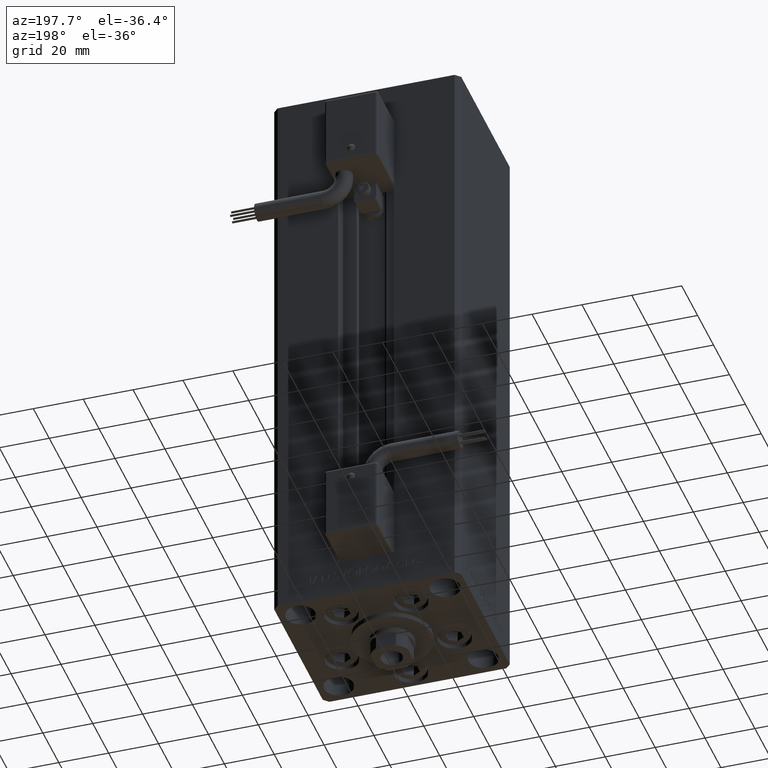
[diagram: clean part render]
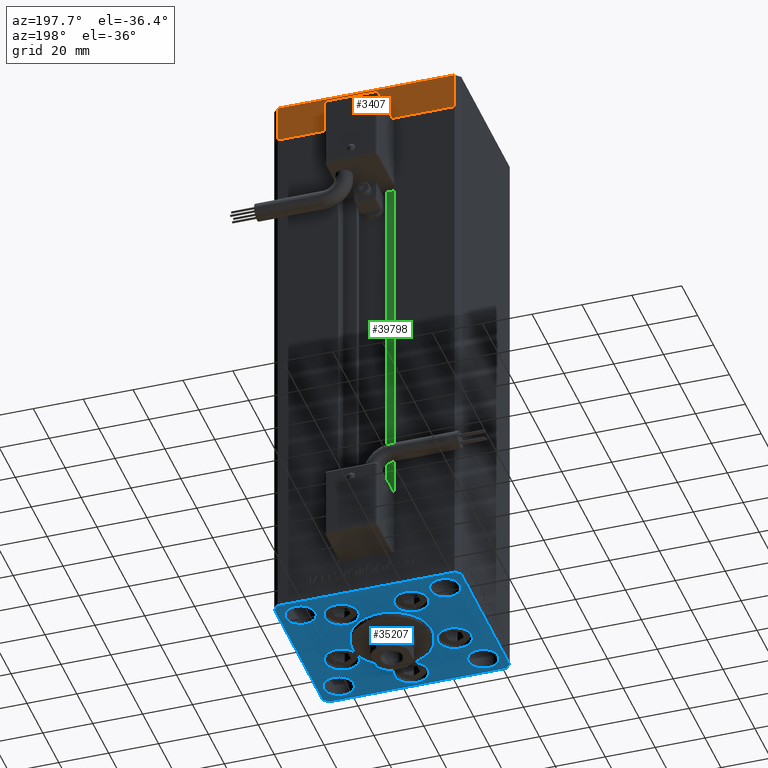
[diagram: same view with three faces highlighted in distinct colors, each labeled with its STEP entity id]
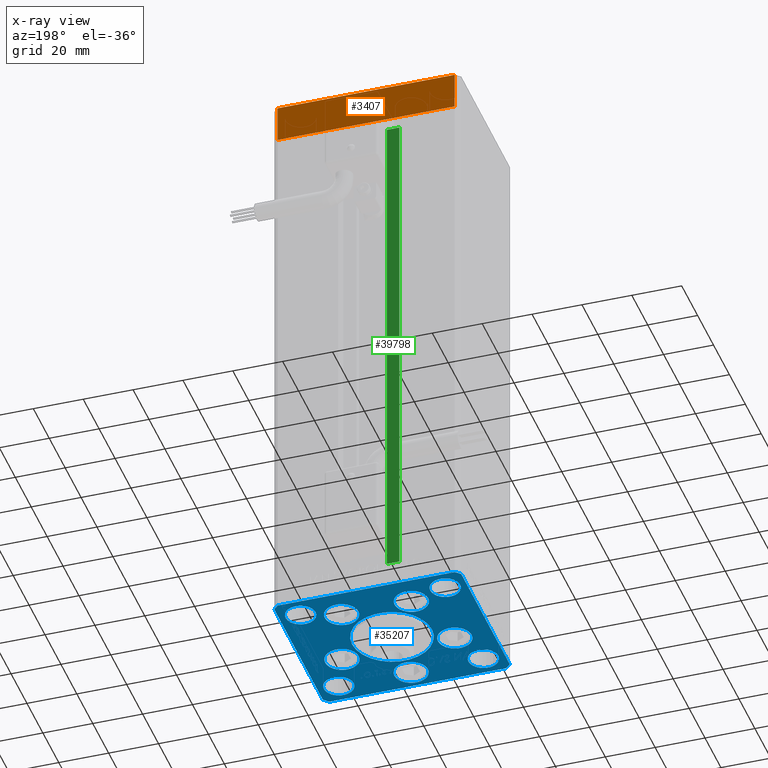
[diagram: x-ray of the same camera — body ghosted, the three highlighted faces saturated]
A machine part, auxiliary view with three faces highlighted in distinct colors.
The next image is the same camera in x-ray (body ghosted, the three faces saturated) — at least one of them is partly hidden behind the body in this view.
Their STEP definitions:

[orange] entity #3407 — the highlighted planar face has unit normal (-0, 1, 0).
#1915 = AXIS2_PLACEMENT_3D ( 'NONE', #33729, #6213, #38228 ) ;
#2566 = LINE ( 'NONE', #34583, #32223 ) ;
#3407 = ADVANCED_FACE ( 'NONE', ( #37442 ), #17332, .T. ) ;
#6213 = DIRECTION ( 'NONE',  ( -1.954618001100629052E-16, 1.000000000000000000, 0.000000000000000000 ) ) ;
#7266 = VERTEX_POINT ( 'NONE', #31467 ) ;
#7743 = DIRECTION ( 'NONE',  ( -1.000000000000000000, -1.954618001100629052E-16, 0.000000000000000000 ) ) ;
#7762 = DIRECTION ( 'NONE',  ( 0.000000000000000000, 0.000000000000000000, 1.000000000000000000 ) ) ;
#9629 = ORIENTED_EDGE ( 'NONE', *, *, #42911, .T. ) ;
#10583 = DIRECTION ( 'NONE',  ( 0.000000000000000000, 0.000000000000000000, 1.000000000000000000 ) ) ;
#12722 = ORIENTED_EDGE ( 'NONE', *, *, #19167, .F. ) ;
#12935 = VECTOR ( 'NONE', #7743, 1000.000000000000000 ) ;
#13737 = VERTEX_POINT ( 'NONE', #27277 ) ;
#15484 = EDGE_LOOP ( 'NONE', ( #48718, #12722, #9629, #39739 ) ) ;
#17332 = PLANE ( 'NONE',  #1915 ) ;
#18325 = EDGE_CURVE ( 'NONE', #13737, #7266, #36067, .T. ) ;
#19167 = EDGE_CURVE ( 'NONE', #47678, #13737, #52210, .T. ) ;
#20178 = CARTESIAN_POINT ( 'NONE',  ( 35.49999999999992184, 32.50000000000000711, 0.000000000000000000 ) ) ;
#21422 = VERTEX_POINT ( 'NONE', #46155 ) ;
#22889 = CARTESIAN_POINT ( 'NONE',  ( 35.49999999999992184, 32.50000000000000711, -15.00000000000000000 ) ) ;
#23541 = LINE ( 'NONE', #27527, #36721 ) ;
#25256 = EDGE_CURVE ( 'NONE', #21422, #7266, #23541, .T. ) ;
#27277 = CARTESIAN_POINT ( 'NONE',  ( 35.49999999999992184, 32.50000000000000711, 0.000000000000000000 ) ) ;
#27527 = CARTESIAN_POINT ( 'NONE',  ( -35.50000000000002842, 32.49999999999999289, -15.00000000000000000 ) ) ;
#31467 = CARTESIAN_POINT ( 'NONE',  ( -35.50000000000002842, 32.49999999999999289, 0.000000000000000000 ) ) ;
#32223 = VECTOR ( 'NONE', #47779, 1000.000000000000000 ) ;
#33729 = CARTESIAN_POINT ( 'NONE',  ( 35.49999999999992184, 32.50000000000000711, -15.00000000000000000 ) ) ;
#34583 = CARTESIAN_POINT ( 'NONE',  ( 35.49999999999992184, 32.50000000000000711, -15.00000000000000000 ) ) ;
#35743 = VECTOR ( 'NONE', #7762, 1000.000000000000000 ) ;
#36067 = LINE ( 'NONE', #20178, #12935 ) ;
#36721 = VECTOR ( 'NONE', #10583, 1000.000000000000000 ) ;
#37442 = FACE_OUTER_BOUND ( 'NONE', #15484, .T. ) ;
#38228 = DIRECTION ( 'NONE',  ( -1.000000000000000000, -1.954618001100629052E-16, 0.000000000000000000 ) ) ;
#39739 = ORIENTED_EDGE ( 'NONE', *, *, #25256, .T. ) ;
#42911 = EDGE_CURVE ( 'NONE', #47678, #21422, #2566, .T. ) ;
#46155 = CARTESIAN_POINT ( 'NONE',  ( -35.50000000000002842, 32.49999999999999289, -15.00000000000000000 ) ) ;
#47678 = VERTEX_POINT ( 'NONE', #48605 ) ;
#47779 = DIRECTION ( 'NONE',  ( -1.000000000000000000, -1.954618001100629052E-16, 0.000000000000000000 ) ) ;
#48605 = CARTESIAN_POINT ( 'NONE',  ( 35.49999999999992184, 32.50000000000000711, -15.00000000000000000 ) ) ;
#48718 = ORIENTED_EDGE ( 'NONE', *, *, #18325, .F. ) ;
#52210 = LINE ( 'NONE', #22889, #35743 ) ;

[blue] entity #35207 — the highlighted planar face has unit normal (0, 0, -1).
#270 = VECTOR ( 'NONE', #51085, 1000.000000000000000 ) ;
#277 = ORIENTED_EDGE ( 'NONE', *, *, #673, .T. ) ;
#344 = EDGE_CURVE ( 'NONE', #48577, #3273, #38997, .T. ) ;
#673 = EDGE_CURVE ( 'NONE', #19801, #29225, #12202, .T. ) ;
#1123 = CIRCLE ( 'NONE', #30708, 6.750000000000009770 ) ;
#1438 = EDGE_CURVE ( 'NONE', #32530, #26619, #46390, .T. ) ;
#1704 = DIRECTION ( 'NONE',  ( 1.000000000000000000, 0.000000000000000000, 0.000000000000000000 ) ) ;
#1765 = ORIENTED_EDGE ( 'NONE', *, *, #43036, .T. ) ;
#2924 = CARTESIAN_POINT ( 'NONE',  ( 35.00000000000000000, 24.00000000000000355, 0.000000000000000000 ) ) ;
#2977 = VERTEX_POINT ( 'NONE', #4700 ) ;
#3086 = CARTESIAN_POINT ( 'NONE',  ( -37.50000000000000000, -30.50000000000004263, 0.000000000000000000 ) ) ;
#3216 = ORIENTED_EDGE ( 'NONE', *, *, #8478, .F. ) ;
#3273 = VERTEX_POINT ( 'NONE', #40344 ) ;
#3555 = FACE_BOUND ( 'NONE', #16547, .T. ) ;
#3586 = CARTESIAN_POINT ( 'NONE',  ( -23.00000000000000000, 24.00000000000000711, 0.000000000000000000 ) ) ;
#3608 = EDGE_CURVE ( 'NONE', #26359, #26034, #6183, .T. ) ;
#4063 = CARTESIAN_POINT ( 'NONE',  ( 0.000000000000000000, 0.000000000000000000, 0.000000000000000000 ) ) ;
#4166 = EDGE_CURVE ( 'NONE', #3273, #48577, #1123, .T. ) ;
#4306 = ORIENTED_EDGE ( 'NONE', *, *, #36727, .F. ) ;
#4700 = CARTESIAN_POINT ( 'NONE',  ( -35.50000000000001421, -32.50000000000000711, 0.000000000000000000 ) ) ;
#4767 = DIRECTION ( 'NONE',  ( 0.000000000000000000, 0.000000000000000000, 1.000000000000000000 ) ) ;
#4801 = DIRECTION ( 'NONE',  ( 0.000000000000000000, 0.000000000000000000, 1.000000000000000000 ) ) ;
#5035 = CARTESIAN_POINT ( 'NONE',  ( -7.241068579633241242, 19.50000000000000000, 0.000000000000000000 ) ) ;
#5104 = ORIENTED_EDGE ( 'NONE', *, *, #26582, .F. ) ;
#5336 = DIRECTION ( 'NONE',  ( 0.000000000000000000, 0.000000000000000000, 1.000000000000000000 ) ) ;
#5362 = ORIENTED_EDGE ( 'NONE', *, *, #21952, .T. ) ;
#5382 = VERTEX_POINT ( 'NONE', #5035 ) ;
#5680 = CARTESIAN_POINT ( 'NONE',  ( 35.50000000000000000, 32.49999999999999289, 0.000000000000000000 ) ) ;
#5684 = CARTESIAN_POINT ( 'NONE',  ( 37.50000000000000711, 30.50000000000001421, 0.000000000000000000 ) ) ;
#5976 = ORIENTED_EDGE ( 'NONE', *, *, #3608, .F. ) ;
#6183 = CIRCLE ( 'NONE', #51795, 6.000000000000001776 ) ;
#6507 = CARTESIAN_POINT ( 'NONE',  ( -22.62741699796953299, -8.000000000000000000, 0.000000000000000000 ) ) ;
#6617 = VERTEX_POINT ( 'NONE', #3586 ) ;
#7098 = ORIENTED_EDGE ( 'NONE', *, *, #29854, .F. ) ;
#7342 = ORIENTED_EDGE ( 'NONE', *, *, #4166, .F. ) ;
#7439 = CIRCLE ( 'NONE', #37030, 16.00000000000000355 ) ;
#7516 = AXIS2_PLACEMENT_3D ( 'NONE', #24002, #47795, #27710 ) ;
#7517 = FACE_OUTER_BOUND ( 'NONE', #32167, .T. ) ;
#7970 = CARTESIAN_POINT ( 'NONE',  ( 29.37741699796954364, -8.000000000000000000, 0.000000000000000000 ) ) ;
#7972 = CARTESIAN_POINT ( 'NONE',  ( 16.00000000000000355, -4.979459025271462852E-15, 0.000000000000000000 ) ) ;
#8014 = VERTEX_POINT ( 'NONE', #22301 ) ;
#8034 = AXIS2_PLACEMENT_3D ( 'NONE', #35292, #38993, #51932 ) ;
#8095 = ORIENTED_EDGE ( 'NONE', *, *, #1438, .T. ) ;
#8306 = CIRCLE ( 'NONE', #37060, 16.00000000000000355 ) ;
#8326 = CARTESIAN_POINT ( 'NONE',  ( 23.00000000000000711, -23.99999999999999645, 0.000000000000000000 ) ) ;
#8478 = EDGE_CURVE ( 'NONE', #50062, #33426, #42171, .T. ) ;
#8496 = CARTESIAN_POINT ( 'NONE',  ( -16.00000000000000355, -6.938893903907228378E-15, 0.000000000000000000 ) ) ;
#8584 = VECTOR ( 'NONE', #44730, 1000.000000000000000 ) ;
#9018 = CARTESIAN_POINT ( 'NONE',  ( 37.50000000000000711, -30.49999999999992895, 0.000000000000000000 ) ) ;
#9247 = DIRECTION ( 'NONE',  ( 1.000000000000000000, 0.000000000000000000, 0.000000000000000000 ) ) ;
#9527 = LINE ( 'NONE', #42058, #47542 ) ;
#9661 = EDGE_CURVE ( 'NONE', #41082, #51525, #8306, .T. ) ;
#10044 = EDGE_CURVE ( 'NONE', #8014, #28279, #44676, .T. ) ;
#10153 = DIRECTION ( 'NONE',  ( -0.7071067811865524577, -0.7071067811865426878, 0.000000000000000000 ) ) ;
#10418 = CARTESIAN_POINT ( 'NONE',  ( -35.00000000000000000, 24.00000000000000711, 0.000000000000000000 ) ) ;
#10489 = CARTESIAN_POINT ( 'NONE',  ( 7.241068579633242130, 19.50000000000000000, 0.000000000000000000 ) ) ;
#10665 = ORIENTED_EDGE ( 'NONE', *, *, #29088, .F. ) ;
#10721 = ORIENTED_EDGE ( 'NONE', *, *, #13947, .F. ) ;
#11313 = DIRECTION ( 'NONE',  ( 1.000000000000000000, 0.000000000000000000, 0.000000000000000000 ) ) ;
#11680 = CARTESIAN_POINT ( 'NONE',  ( 6.750000000001552536, -24.00000000000001066, 0.000000000000000000 ) ) ;
#12018 = CIRCLE ( 'NONE', #36527, 6.750000000000000000 ) ;
#12202 = LINE ( 'NONE', #9018, #8584 ) ;
#12546 = CARTESIAN_POINT ( 'NONE',  ( -13.99106857963324124, 19.50000000000000000, 0.000000000000000000 ) ) ;
#12797 = EDGE_LOOP ( 'NONE', ( #45935, #31884 ) ) ;
#12858 = CARTESIAN_POINT ( 'NONE',  ( 23.00000000000000000, 24.00000000000000355, 0.000000000000000000 ) ) ;
#13095 = VERTEX_POINT ( 'NONE', #25775 ) ;
#13119 = CARTESIAN_POINT ( 'NONE',  ( -35.50000000000001421, -32.50000000000000711, 0.000000000000000000 ) ) ;
#13271 = CARTESIAN_POINT ( 'NONE',  ( -29.37741699796953654, -8.000000000000000000, 0.000000000000000000 ) ) ;
#13377 = LINE ( 'NONE', #13119, #43028 ) ;
#13411 = DIRECTION ( 'NONE',  ( 0.000000000000000000, 0.000000000000000000, 1.000000000000000000 ) ) ;
#13464 = DIRECTION ( 'NONE',  ( 1.000000000000000000, 0.000000000000000000, 0.000000000000000000 ) ) ;
#13680 = CARTESIAN_POINT ( 'NONE',  ( -37.50000000000001421, 30.50000000000000000, 0.000000000000000000 ) ) ;
#13795 = EDGE_LOOP ( 'NONE', ( #34875, #7098 ) ) ;
#13804 = CARTESIAN_POINT ( 'NONE',  ( -29.00000000000000000, 24.00000000000000711, 0.000000000000000000 ) ) ;
#13947 = EDGE_CURVE ( 'NONE', #13095, #19457, #16968, .T. ) ;
#14138 = AXIS2_PLACEMENT_3D ( 'NONE', #4063, #51712, #43256 ) ;
#14337 = LINE ( 'NONE', #30243, #26995 ) ;
#14532 = EDGE_CURVE ( 'NONE', #42745, #35620, #35550, .T. ) ;
#15215 = FACE_BOUND ( 'NONE', #43438, .T. ) ;
#15710 = DIRECTION ( 'NONE',  ( 0.000000000000000000, 0.000000000000000000, 1.000000000000000000 ) ) ;
#15910 = EDGE_CURVE ( 'NONE', #38344, #28879, #33103, .T. ) ;
#15982 = FACE_BOUND ( 'NONE', #13795, .T. ) ;
#16049 = AXIS2_PLACEMENT_3D ( 'NONE', #36415, #27200, #31682 ) ;
#16178 = CARTESIAN_POINT ( 'NONE',  ( 0.000000000000000000, -6.938893903907228378E-15, 0.000000000000000000 ) ) ;
#16188 = EDGE_CURVE ( 'NONE', #29225, #16789, #32792, .T. ) ;
#16390 = CIRCLE ( 'NONE', #20624, 6.000000000000001776 ) ;
#16510 = CIRCLE ( 'NONE', #8034, 5.999999999999998224 ) ;
#16547 = EDGE_LOOP ( 'NONE', ( #4306, #28700 ) ) ;
#16586 = CIRCLE ( 'NONE', #22531, 6.749999999999999112 ) ;
#16618 = CARTESIAN_POINT ( 'NONE',  ( -35.00000000000000000, -23.99999999999999645, 0.000000000000000000 ) ) ;
#16789 = VERTEX_POINT ( 'NONE', #5680 ) ;
#16805 = EDGE_CURVE ( 'NONE', #5382, #21993, #12018, .T. ) ;
#16905 = DIRECTION ( 'NONE',  ( 0.000000000000000000, 0.000000000000000000, 1.000000000000000000 ) ) ;
#16968 = CIRCLE ( 'NONE', #27972, 6.750000000001552536 ) ;
#17059 = DIRECTION ( 'NONE',  ( 0.000000000000000000, 0.000000000000000000, 1.000000000000000000 ) ) ;
#17616 = ORIENTED_EDGE ( 'NONE', *, *, #39085, .T. ) ;
#17899 = DIRECTION ( 'NONE',  ( 0.000000000000000000, 0.000000000000000000, 1.000000000000000000 ) ) ;
#18022 = DIRECTION ( 'NONE',  ( 1.000000000000000000, 0.000000000000000000, 0.000000000000000000 ) ) ;
#18046 = DIRECTION ( 'NONE',  ( 2.275047181608926165E-16, -1.000000000000000000, 0.000000000000000000 ) ) ;
#18123 = DIRECTION ( 'NONE',  ( 1.000000000000000000, 1.172770800660376149E-15, 0.000000000000000000 ) ) ;
#18455 = CARTESIAN_POINT ( 'NONE',  ( 35.50000000000001421, -32.49999999999992184, 0.000000000000000000 ) ) ;
#18558 = CARTESIAN_POINT ( 'NONE',  ( 22.62741699796953299, -8.000000000000000000, 0.000000000000000000 ) ) ;
#18814 = CARTESIAN_POINT ( 'NONE',  ( -37.50000000000000000, -30.50000000000004263, 0.000000000000000000 ) ) ;
#19457 = VERTEX_POINT ( 'NONE', #11680 ) ;
#19639 = EDGE_LOOP ( 'NONE', ( #38511, #50851 ) ) ;
#19645 = CIRCLE ( 'NONE', #23884, 6.750000000000000000 ) ;
#19801 = VERTEX_POINT ( 'NONE', #28234 ) ;
#19938 = CIRCLE ( 'NONE', #47838, 6.749999999999997335 ) ;
#19951 = ORIENTED_EDGE ( 'NONE', *, *, #38728, .T. ) ;
#20624 = AXIS2_PLACEMENT_3D ( 'NONE', #51951, #15710, #44014 ) ;
#21063 = EDGE_LOOP ( 'NONE', ( #5104, #5976 ) ) ;
#21075 = AXIS2_PLACEMENT_3D ( 'NONE', #25558, #36463, #49348 ) ;
#21244 = VECTOR ( 'NONE', #40892, 1000.000000000000000 ) ;
#21952 = EDGE_CURVE ( 'NONE', #16789, #32530, #9527, .T. ) ;
#21993 = VERTEX_POINT ( 'NONE', #23012 ) ;
#22000 = CARTESIAN_POINT ( 'NONE',  ( 29.00000000000000355, -23.99999999999999645, 0.000000000000000000 ) ) ;
#22216 = EDGE_LOOP ( 'NONE', ( #28784, #29048 ) ) ;
#22222 = CARTESIAN_POINT ( 'NONE',  ( 13.99106857963324124, 19.50000000000000000, 0.000000000000000000 ) ) ;
#22300 = EDGE_LOOP ( 'NONE', ( #3216, #10665 ) ) ;
#22301 = CARTESIAN_POINT ( 'NONE',  ( -23.00000000000000000, -23.99999999999999645, 0.000000000000000000 ) ) ;
#22531 = AXIS2_PLACEMENT_3D ( 'NONE', #43366, #44132, #38864 ) ;
#23012 = CARTESIAN_POINT ( 'NONE',  ( -20.74106857963324302, 19.50000000000000000, 0.000000000000000000 ) ) ;
#23429 = FACE_BOUND ( 'NONE', #12797, .T. ) ;
#23649 = DIRECTION ( 'NONE',  ( 0.000000000000000000, 0.000000000000000000, 1.000000000000000000 ) ) ;
#23884 = AXIS2_PLACEMENT_3D ( 'NONE', #12546, #40576, #11313 ) ;
#23943 = EDGE_CURVE ( 'NONE', #32718, #6617, #16390, .T. ) ;
#23987 = EDGE_LOOP ( 'NONE', ( #36303, #10721 ) ) ;
#24002 = CARTESIAN_POINT ( 'NONE',  ( -29.00000000000000000, -23.99999999999999645, 0.000000000000000000 ) ) ;
#24019 = CARTESIAN_POINT ( 'NONE',  ( 20.74106857963323947, 19.50000000000000000, 0.000000000000000000 ) ) ;
#24323 = CARTESIAN_POINT ( 'NONE',  ( 0.000000000000000000, -24.00000000000001066, 0.000000000000000000 ) ) ;
#24893 = CARTESIAN_POINT ( 'NONE',  ( -29.00000000000000000, -23.99999999999999645, 0.000000000000000000 ) ) ;
#25558 = CARTESIAN_POINT ( 'NONE',  ( 13.99106857963324124, 19.50000000000000000, 0.000000000000000000 ) ) ;
#25775 = CARTESIAN_POINT ( 'NONE',  ( -6.750000000001552536, -24.00000000000001066, 0.000000000000000000 ) ) ;
#26034 = VERTEX_POINT ( 'NONE', #2924 ) ;
#26150 = CARTESIAN_POINT ( 'NONE',  ( 22.62741699796953299, -8.000000000000000000, 0.000000000000000000 ) ) ;
#26359 = VERTEX_POINT ( 'NONE', #12858 ) ;
#26582 = EDGE_CURVE ( 'NONE', #26034, #26359, #43518, .T. ) ;
#26592 = CARTESIAN_POINT ( 'NONE',  ( -35.50000000000000711, 32.49999999999997868, 0.000000000000000000 ) ) ;
#26619 = VERTEX_POINT ( 'NONE', #13680 ) ;
#26995 = VECTOR ( 'NONE', #18046, 1000.000000000000000 ) ;
#27200 = DIRECTION ( 'NONE',  ( 0.000000000000000000, 0.000000000000000000, 1.000000000000000000 ) ) ;
#27404 = FACE_BOUND ( 'NONE', #50615, .T. ) ;
#27598 = EDGE_CURVE ( 'NONE', #28879, #38344, #16510, .T. ) ;
#27710 = DIRECTION ( 'NONE',  ( 1.000000000000000000, 0.000000000000000000, 0.000000000000000000 ) ) ;
#27972 = AXIS2_PLACEMENT_3D ( 'NONE', #24323, #16905, #13464 ) ;
#28027 = DIRECTION ( 'NONE',  ( 1.000000000000000000, 0.000000000000000000, 0.000000000000000000 ) ) ;
#28178 = FACE_BOUND ( 'NONE', #22216, .T. ) ;
#28219 = LINE ( 'NONE', #44592, #21244 ) ;
#28234 = CARTESIAN_POINT ( 'NONE',  ( 37.50000000000000711, -30.49999999999992895, 0.000000000000000000 ) ) ;
#28279 = VERTEX_POINT ( 'NONE', #16618 ) ;
#28311 = CARTESIAN_POINT ( 'NONE',  ( 37.50000000000000711, 30.50000000000001421, 0.000000000000000000 ) ) ;
#28700 = ORIENTED_EDGE ( 'NONE', *, *, #23943, .F. ) ;
#28784 = ORIENTED_EDGE ( 'NONE', *, *, #27598, .F. ) ;
#28879 = VERTEX_POINT ( 'NONE', #35736 ) ;
#28897 = DIRECTION ( 'NONE',  ( 1.000000000000000000, 0.000000000000000000, 0.000000000000000000 ) ) ;
#29048 = ORIENTED_EDGE ( 'NONE', *, *, #15910, .F. ) ;
#29088 = EDGE_CURVE ( 'NONE', #33426, #50062, #19938, .T. ) ;
#29225 = VERTEX_POINT ( 'NONE', #5684 ) ;
#29854 = EDGE_CURVE ( 'NONE', #28279, #8014, #30137, .T. ) ;
#29961 = DIRECTION ( 'NONE',  ( 0.000000000000000000, 0.000000000000000000, 1.000000000000000000 ) ) ;
#30076 = EDGE_CURVE ( 'NONE', #35620, #42745, #16586, .T. ) ;
#30098 = DIRECTION ( 'NONE',  ( 1.000000000000000000, 0.000000000000000000, 0.000000000000000000 ) ) ;
#30137 = CIRCLE ( 'NONE', #42761, 6.000000000000001776 ) ;
#30243 = CARTESIAN_POINT ( 'NONE',  ( -37.50000000000001421, 30.50000000000000000, 0.000000000000000000 ) ) ;
#30708 = AXIS2_PLACEMENT_3D ( 'NONE', #18558, #42377, #37893 ) ;
#31191 = ORIENTED_EDGE ( 'NONE', *, *, #16805, .F. ) ;
#31460 = VECTOR ( 'NONE', #10153, 1000.000000000000000 ) ;
#31682 = DIRECTION ( 'NONE',  ( 1.000000000000000000, 0.000000000000000000, 0.000000000000000000 ) ) ;
#31884 = ORIENTED_EDGE ( 'NONE', *, *, #30076, .F. ) ;
#32167 = EDGE_LOOP ( 'NONE', ( #47750, #17616, #1765, #277, #41604, #5362, #8095, #19951 ) ) ;
#32530 = VERTEX_POINT ( 'NONE', #51211 ) ;
#32718 = VERTEX_POINT ( 'NONE', #10418 ) ;
#32792 = LINE ( 'NONE', #28311, #50837 ) ;
#33103 = CIRCLE ( 'NONE', #44906, 5.999999999999998224 ) ;
#33426 = VERTEX_POINT ( 'NONE', #10489 ) ;
#34764 = AXIS2_PLACEMENT_3D ( 'NONE', #6507, #13411, #30098 ) ;
#34875 = ORIENTED_EDGE ( 'NONE', *, *, #10044, .F. ) ;
#34955 = LINE ( 'NONE', #18814, #270 ) ;
#35207 = ADVANCED_FACE ( 'NONE', ( #36096, #15215, #35324, #27404, #43776, #23429, #35580, #3555, #15982, #28178, #7517 ), #40313, .T. ) ;
#35292 = CARTESIAN_POINT ( 'NONE',  ( 29.00000000000000355, -23.99999999999999645, 0.000000000000000000 ) ) ;
#35324 = FACE_BOUND ( 'NONE', #22300, .T. ) ;
#35513 = CIRCLE ( 'NONE', #16049, 6.750000000001552536 ) ;
#35550 = CIRCLE ( 'NONE', #34764, 6.749999999999999112 ) ;
#35579 = EDGE_CURVE ( 'NONE', #51525, #41082, #7439, .T. ) ;
#35580 = FACE_BOUND ( 'NONE', #21063, .T. ) ;
#35620 = VERTEX_POINT ( 'NONE', #13271 ) ;
#35736 = CARTESIAN_POINT ( 'NONE',  ( 35.00000000000000000, -23.99999999999999645, 0.000000000000000000 ) ) ;
#36096 = FACE_BOUND ( 'NONE', #19639, .T. ) ;
#36303 = ORIENTED_EDGE ( 'NONE', *, *, #40461, .F. ) ;
#36415 = CARTESIAN_POINT ( 'NONE',  ( 0.000000000000000000, -24.00000000000001066, 0.000000000000000000 ) ) ;
#36463 = DIRECTION ( 'NONE',  ( 0.000000000000000000, 0.000000000000000000, 1.000000000000000000 ) ) ;
#36527 = AXIS2_PLACEMENT_3D ( 'NONE', #41390, #17059, #1704 ) ;
#36727 = EDGE_CURVE ( 'NONE', #6617, #32718, #38726, .T. ) ;
#37030 = AXIS2_PLACEMENT_3D ( 'NONE', #16178, #4801, #28897 ) ;
#37060 = AXIS2_PLACEMENT_3D ( 'NONE', #48101, #48627, #28027 ) ;
#37575 = DIRECTION ( 'NONE',  ( -1.000000000000000000, -1.954618001100627573E-16, 0.000000000000000000 ) ) ;
#37893 = DIRECTION ( 'NONE',  ( 1.000000000000000000, 0.000000000000000000, 0.000000000000000000 ) ) ;
#38344 = VERTEX_POINT ( 'NONE', #8326 ) ;
#38511 = ORIENTED_EDGE ( 'NONE', *, *, #9661, .F. ) ;
#38726 = CIRCLE ( 'NONE', #48865, 6.000000000000001776 ) ;
#38728 = EDGE_CURVE ( 'NONE', #26619, #42921, #14337, .T. ) ;
#38864 = DIRECTION ( 'NONE',  ( 1.000000000000000000, 0.000000000000000000, 0.000000000000000000 ) ) ;
#38993 = DIRECTION ( 'NONE',  ( 0.000000000000000000, 0.000000000000000000, 1.000000000000000000 ) ) ;
#38997 = CIRCLE ( 'NONE', #44913, 6.750000000000009770 ) ;
#39085 = EDGE_CURVE ( 'NONE', #2977, #44595, #13377, .T. ) ;
#39767 = DIRECTION ( 'NONE',  ( 1.000000000000000000, 0.000000000000000000, 0.000000000000000000 ) ) ;
#40313 = PLANE ( 'NONE',  #14138 ) ;
#40344 = CARTESIAN_POINT ( 'NONE',  ( 15.87741699796952410, -8.000000000000000000, 0.000000000000000000 ) ) ;
#40461 = EDGE_CURVE ( 'NONE', #19457, #13095, #35513, .T. ) ;
#40559 = DIRECTION ( 'NONE',  ( 1.000000000000000000, 0.000000000000000000, 0.000000000000000000 ) ) ;
#40576 = DIRECTION ( 'NONE',  ( 0.000000000000000000, 0.000000000000000000, 1.000000000000000000 ) ) ;
#40892 = DIRECTION ( 'NONE',  ( 0.7071067811865463515, 0.7071067811865487940, 0.000000000000000000 ) ) ;
#41082 = VERTEX_POINT ( 'NONE', #8496 ) ;
#41127 = ORIENTED_EDGE ( 'NONE', *, *, #344, .F. ) ;
#41390 = CARTESIAN_POINT ( 'NONE',  ( -13.99106857963324124, 19.50000000000000000, 0.000000000000000000 ) ) ;
#41604 = ORIENTED_EDGE ( 'NONE', *, *, #16188, .T. ) ;
#41790 = DIRECTION ( 'NONE',  ( 0.000000000000000000, 0.000000000000000000, 1.000000000000000000 ) ) ;
#42058 = CARTESIAN_POINT ( 'NONE',  ( 35.50000000000000000, 32.49999999999999289, 0.000000000000000000 ) ) ;
#42171 = CIRCLE ( 'NONE', #21075, 6.749999999999997335 ) ;
#42259 = DIRECTION ( 'NONE',  ( 0.000000000000000000, 0.000000000000000000, 1.000000000000000000 ) ) ;
#42377 = DIRECTION ( 'NONE',  ( 0.000000000000000000, 0.000000000000000000, 1.000000000000000000 ) ) ;
#42503 = CARTESIAN_POINT ( 'NONE',  ( 29.00000000000000000, 24.00000000000000355, 0.000000000000000000 ) ) ;
#42745 = VERTEX_POINT ( 'NONE', #45699 ) ;
#42761 = AXIS2_PLACEMENT_3D ( 'NONE', #24893, #4767, #50515 ) ;
#42921 = VERTEX_POINT ( 'NONE', #3086 ) ;
#43028 = VECTOR ( 'NONE', #18123, 1000.000000000000000 ) ;
#43036 = EDGE_CURVE ( 'NONE', #44595, #19801, #28219, .T. ) ;
#43256 = DIRECTION ( 'NONE',  ( 1.000000000000000000, 0.000000000000000000, 0.000000000000000000 ) ) ;
#43366 = CARTESIAN_POINT ( 'NONE',  ( -22.62741699796953299, -8.000000000000000000, 0.000000000000000000 ) ) ;
#43438 = EDGE_LOOP ( 'NONE', ( #31191, #49339 ) ) ;
#43518 = CIRCLE ( 'NONE', #51927, 6.000000000000001776 ) ;
#43749 = CARTESIAN_POINT ( 'NONE',  ( 29.00000000000000000, 24.00000000000000355, 0.000000000000000000 ) ) ;
#43776 = FACE_BOUND ( 'NONE', #23987, .T. ) ;
#44014 = DIRECTION ( 'NONE',  ( 1.000000000000000000, 0.000000000000000000, 0.000000000000000000 ) ) ;
#44132 = DIRECTION ( 'NONE',  ( 0.000000000000000000, 0.000000000000000000, 1.000000000000000000 ) ) ;
#44592 = CARTESIAN_POINT ( 'NONE',  ( 35.50000000000001421, -32.49999999999992184, 0.000000000000000000 ) ) ;
#44595 = VERTEX_POINT ( 'NONE', #18455 ) ;
#44676 = CIRCLE ( 'NONE', #7516, 6.000000000000001776 ) ;
#44730 = DIRECTION ( 'NONE',  ( 0.000000000000000000, 1.000000000000000000, 0.000000000000000000 ) ) ;
#44906 = AXIS2_PLACEMENT_3D ( 'NONE', #22000, #5336, #49761 ) ;
#44913 = AXIS2_PLACEMENT_3D ( 'NONE', #26150, #42259, #40559 ) ;
#45681 = DIRECTION ( 'NONE',  ( 1.000000000000000000, 0.000000000000000000, 0.000000000000000000 ) ) ;
#45699 = CARTESIAN_POINT ( 'NONE',  ( -15.87741699796953476, -8.000000000000000000, 0.000000000000000000 ) ) ;
#45935 = ORIENTED_EDGE ( 'NONE', *, *, #14532, .F. ) ;
#46390 = LINE ( 'NONE', #26592, #31460 ) ;
#47542 = VECTOR ( 'NONE', #37575, 1000.000000000000000 ) ;
#47750 = ORIENTED_EDGE ( 'NONE', *, *, #50569, .T. ) ;
#47795 = DIRECTION ( 'NONE',  ( 0.000000000000000000, 0.000000000000000000, 1.000000000000000000 ) ) ;
#47838 = AXIS2_PLACEMENT_3D ( 'NONE', #22222, #41790, #9247 ) ;
#48101 = CARTESIAN_POINT ( 'NONE',  ( 0.000000000000000000, -6.938893903907228378E-15, 0.000000000000000000 ) ) ;
#48121 = DIRECTION ( 'NONE',  ( -0.7071067811865524577, 0.7071067811865426878, 0.000000000000000000 ) ) ;
#48577 = VERTEX_POINT ( 'NONE', #7970 ) ;
#48627 = DIRECTION ( 'NONE',  ( 0.000000000000000000, 0.000000000000000000, 1.000000000000000000 ) ) ;
#48865 = AXIS2_PLACEMENT_3D ( 'NONE', #13804, #29961, #18022 ) ;
#49319 = EDGE_CURVE ( 'NONE', #21993, #5382, #19645, .T. ) ;
#49339 = ORIENTED_EDGE ( 'NONE', *, *, #49319, .F. ) ;
#49348 = DIRECTION ( 'NONE',  ( 1.000000000000000000, 0.000000000000000000, 0.000000000000000000 ) ) ;
#49761 = DIRECTION ( 'NONE',  ( 1.000000000000000000, 0.000000000000000000, 0.000000000000000000 ) ) ;
#50062 = VERTEX_POINT ( 'NONE', #24019 ) ;
#50515 = DIRECTION ( 'NONE',  ( 1.000000000000000000, 0.000000000000000000, 0.000000000000000000 ) ) ;
#50569 = EDGE_CURVE ( 'NONE', #42921, #2977, #34955, .T. ) ;
#50615 = EDGE_LOOP ( 'NONE', ( #41127, #7342 ) ) ;
#50837 = VECTOR ( 'NONE', #48121, 1000.000000000000000 ) ;
#50851 = ORIENTED_EDGE ( 'NONE', *, *, #35579, .F. ) ;
#51085 = DIRECTION ( 'NONE',  ( 0.7071067811865512365, -0.7071067811865439090, 0.000000000000000000 ) ) ;
#51211 = CARTESIAN_POINT ( 'NONE',  ( -35.50000000000000711, 32.49999999999997868, 0.000000000000000000 ) ) ;
#51525 = VERTEX_POINT ( 'NONE', #7972 ) ;
#51712 = DIRECTION ( 'NONE',  ( -0.000000000000000000, 0.000000000000000000, 1.000000000000000000 ) ) ;
#51795 = AXIS2_PLACEMENT_3D ( 'NONE', #43749, #23649, #39767 ) ;
#51927 = AXIS2_PLACEMENT_3D ( 'NONE', #42503, #17899, #45681 ) ;
#51932 = DIRECTION ( 'NONE',  ( 1.000000000000000000, 0.000000000000000000, 0.000000000000000000 ) ) ;
#51951 = CARTESIAN_POINT ( 'NONE',  ( -29.00000000000000000, 24.00000000000000711, 0.000000000000000000 ) ) ;

[green] entity #39798 — the highlighted planar face has unit normal (0, -1, 0).
#1674 = AXIS2_PLACEMENT_3D ( 'NONE', #14176, #34282, #9410 ) ;
#4080 = ORIENTED_EDGE ( 'NONE', *, *, #25786, .T. ) ;
#5450 = VECTOR ( 'NONE', #30210, 1000.000000000000000 ) ;
#6602 = CARTESIAN_POINT ( 'NONE',  ( -11.25000000000000178, 25.99999999999999289, 0.000000000000000000 ) ) ;
#6904 = ORIENTED_EDGE ( 'NONE', *, *, #15548, .F. ) ;
#6949 = DIRECTION ( 'NONE',  ( -0.000000000000000000, -0.000000000000000000, 1.000000000000000000 ) ) ;
#9410 = DIRECTION ( 'NONE',  ( 0.000000000000000000, 0.000000000000000000, -1.000000000000000000 ) ) ;
#10253 = VERTEX_POINT ( 'NONE', #22400 ) ;
#14107 = EDGE_LOOP ( 'NONE', ( #35657, #6904, #4080, #28698 ) ) ;
#14176 = CARTESIAN_POINT ( 'NONE',  ( -6.183333333334001480, 25.99999999999999289, 0.000000000000000000 ) ) ;
#14568 = CARTESIAN_POINT ( 'NONE',  ( -6.183333333334001480, 25.99999999999999289, 206.0000000000000000 ) ) ;
#14933 = CARTESIAN_POINT ( 'NONE',  ( 0.000000000000000000, 25.99999999999999289, 206.0000000000000000 ) ) ;
#15548 = EDGE_CURVE ( 'NONE', #23684, #10253, #17372, .T. ) ;
#16974 = VERTEX_POINT ( 'NONE', #42955 ) ;
#17372 = LINE ( 'NONE', #29833, #41519 ) ;
#18150 = EDGE_CURVE ( 'NONE', #31834, #16974, #27102, .T. ) ;
#19129 = CARTESIAN_POINT ( 'NONE',  ( -11.25000000000000178, 25.99999999999999289, 0.000000000000000000 ) ) ;
#22400 = CARTESIAN_POINT ( 'NONE',  ( -6.183333333334001480, 25.99999999999999289, 0.000000000000000000 ) ) ;
#23684 = VERTEX_POINT ( 'NONE', #6602 ) ;
#25197 = EDGE_CURVE ( 'NONE', #10253, #31834, #50537, .T. ) ;
#25786 = EDGE_CURVE ( 'NONE', #23684, #16974, #47417, .T. ) ;
#25832 = FACE_OUTER_BOUND ( 'NONE', #14107, .T. ) ;
#26356 = PLANE ( 'NONE',  #1674 ) ;
#26606 = DIRECTION ( 'NONE',  ( -1.000000000000000000, 0.000000000000000000, 0.000000000000000000 ) ) ;
#27102 = LINE ( 'NONE', #14933, #29002 ) ;
#28698 = ORIENTED_EDGE ( 'NONE', *, *, #18150, .F. ) ;
#29002 = VECTOR ( 'NONE', #26606, 1000.000000000000000 ) ;
#29833 = CARTESIAN_POINT ( 'NONE',  ( -6.183333333334001480, 25.99999999999999289, 0.000000000000000000 ) ) ;
#30210 = DIRECTION ( 'NONE',  ( -0.000000000000000000, -0.000000000000000000, 1.000000000000000000 ) ) ;
#31834 = VERTEX_POINT ( 'NONE', #14568 ) ;
#33515 = DIRECTION ( 'NONE',  ( 1.000000000000000000, -0.000000000000000000, -0.000000000000000000 ) ) ;
#33622 = CARTESIAN_POINT ( 'NONE',  ( -6.183333333334001480, 25.99999999999999289, 0.000000000000000000 ) ) ;
#34282 = DIRECTION ( 'NONE',  ( 0.000000000000000000, -1.000000000000000000, -0.000000000000000000 ) ) ;
#35657 = ORIENTED_EDGE ( 'NONE', *, *, #25197, .F. ) ;
#39798 = ADVANCED_FACE ( 'NONE', ( #25832 ), #26356, .F. ) ;
#41519 = VECTOR ( 'NONE', #33515, 1000.000000000000000 ) ;
#42955 = CARTESIAN_POINT ( 'NONE',  ( -11.25000000000000178, 25.99999999999999289, 206.0000000000000000 ) ) ;
#46004 = VECTOR ( 'NONE', #6949, 1000.000000000000000 ) ;
#47417 = LINE ( 'NONE', #19129, #46004 ) ;
#50537 = LINE ( 'NONE', #33622, #5450 ) ;